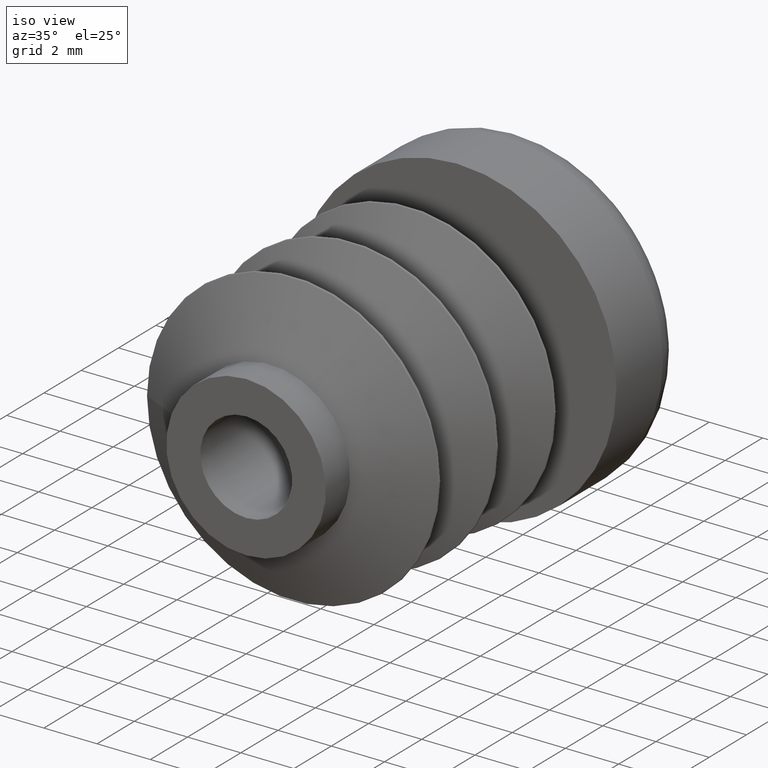
[diagram: clean part render]
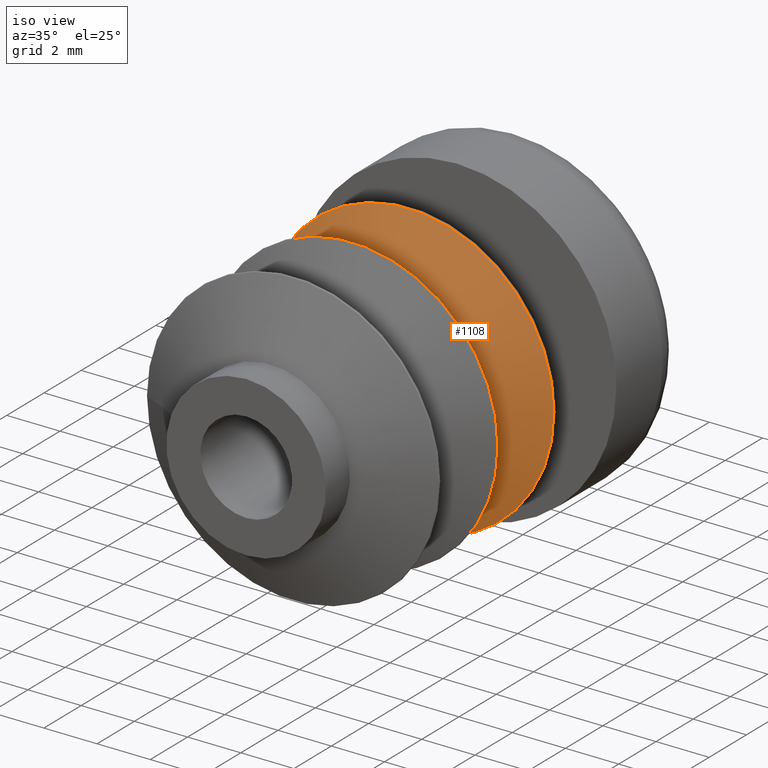
[diagram: same view with one face highlighted and labeled with its STEP entity id]
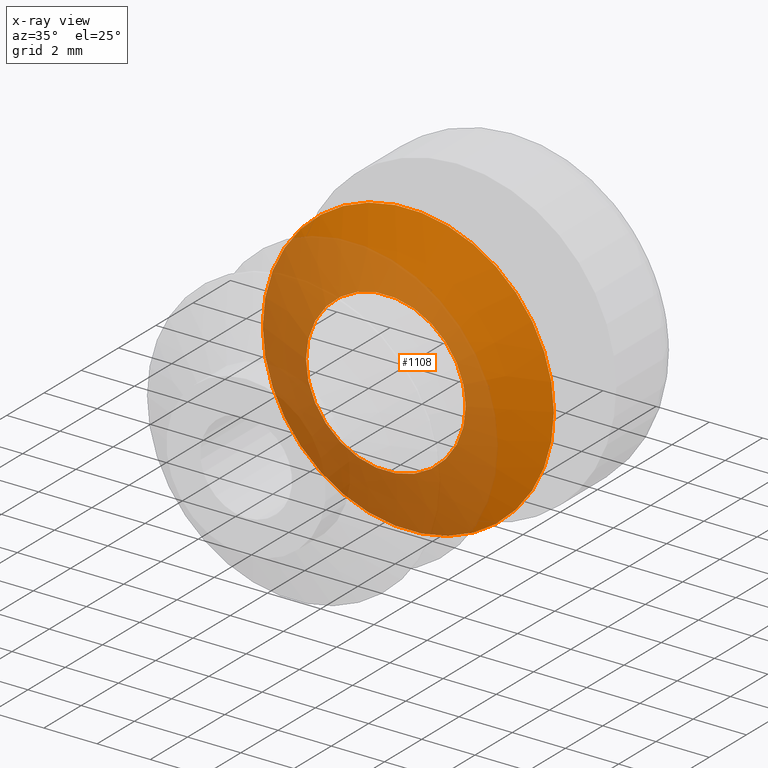
[diagram: x-ray of the same camera — body ghosted, the highlighted face saturated]
A machine part, iso view. The second image highlights one B-rep face of the part: STEP entity #1108.
The next image is the same camera in x-ray: the body ghosted, the highlighted face saturated — about 55% of this face is hidden behind the body in this view.
In plain terms, the highlighted conical surface has half-angle 64.011 deg.
Its self-contained STEP definition (entity closure, byte-faithful):
#192 = DIRECTION ( 'NONE',  ( -1.047444401652940007E-14, 1.000000000000000000, 0.000000000000000000 ) ) ;
#358 = DIRECTION ( 'NONE',  ( -1.047444401652940007E-14, 1.000000000000000000, 0.000000000000000000 ) ) ;
#565 = VERTEX_POINT ( 'NONE', #9766 ) ;
#922 = EDGE_LOOP ( 'NONE', ( #4022 ) ) ;
#1108 = ADVANCED_FACE ( 'NONE', ( #6638, #9035 ), #5348, .T. ) ;
#1434 = EDGE_CURVE ( 'NONE', #6523, #6523, #5584, .T. ) ;
#2301 = AXIS2_PLACEMENT_3D ( 'NONE', #9350, #192, #4063 ) ;
#2571 = DIRECTION ( 'NONE',  ( -1.000000000000000000, -1.040834085586082679E-14, 0.000000000000000000 ) ) ;
#3341 = AXIS2_PLACEMENT_3D ( 'NONE', #5899, #4311, #3686 ) ;
#3422 = EDGE_LOOP ( 'NONE', ( #6443 ) ) ;
#3686 = DIRECTION ( 'NONE',  ( 1.000000000000000000, 1.046177176374496734E-14, 0.000000000000000000 ) ) ;
#4022 = ORIENTED_EDGE ( 'NONE', *, *, #5092, .T. ) ;
#4063 = DIRECTION ( 'NONE',  ( -1.000000000000000000, -1.040834085586056015E-14, 0.000000000000000000 ) ) ;
#4311 = DIRECTION ( 'NONE',  ( 1.047444401652940007E-14, -1.000000000000000000, -0.000000000000000000 ) ) ;
#4371 = CARTESIAN_POINT ( 'NONE',  ( 5.471910112359548606, 8.705056179775404246, 0.000000000000000000 ) ) ;
#5092 = EDGE_CURVE ( 'NONE', #565, #565, #9559, .T. ) ;
#5194 = AXIS2_PLACEMENT_3D ( 'NONE', #7137, #358, #2571 ) ;
#5348 = CONICAL_SURFACE ( 'NONE', #2301, 3.000000000000081268, 1.117198630687125105 ) ;
#5584 = CIRCLE ( 'NONE', #3341, 5.471910112359640088 ) ;
#5899 = CARTESIAN_POINT ( 'NONE',  ( -9.118062361580016200E-14, 8.705056179775347402, 0.000000000000000000 ) ) ;
#6443 = ORIENTED_EDGE ( 'NONE', *, *, #1434, .T. ) ;
#6523 = VERTEX_POINT ( 'NONE', #4371 ) ;
#6638 = FACE_OUTER_BOUND ( 'NONE', #3422, .T. ) ;
#7137 = CARTESIAN_POINT ( 'NONE',  ( -7.855833012397075924E-14, 7.500000000000024869, 0.000000000000000000 ) ) ;
#9035 = FACE_BOUND ( 'NONE', #922, .T. ) ;
#9350 = CARTESIAN_POINT ( 'NONE',  ( -7.855833012397115052E-14, 7.500000000000062172, 0.000000000000000000 ) ) ;
#9559 = CIRCLE ( 'NONE', #5194, 3.000000000000004441 ) ;
#9766 = CARTESIAN_POINT ( 'NONE',  ( -3.000000000000083045, 7.499999999999993783, 0.000000000000000000 ) ) ;